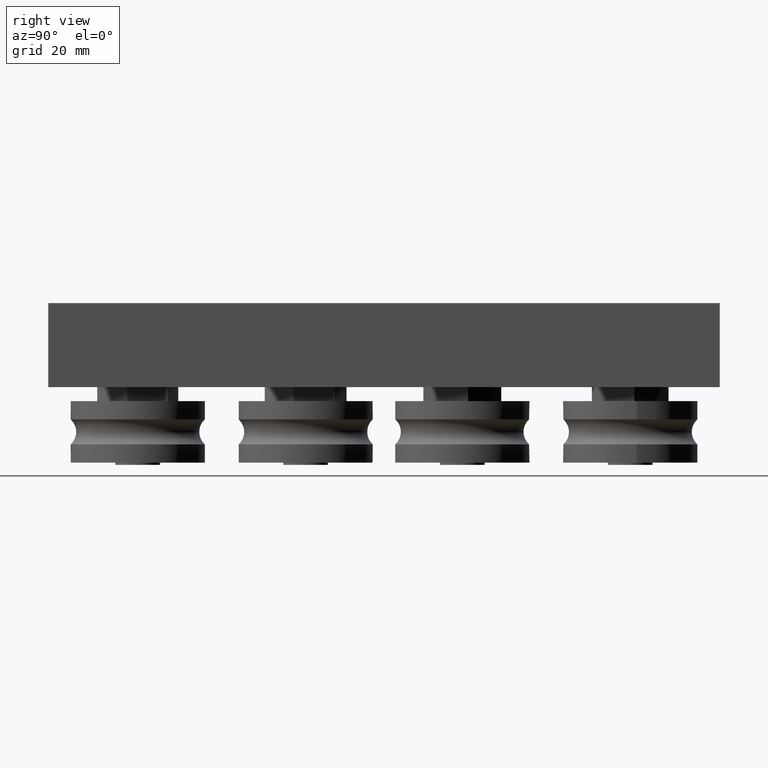
[diagram: clean part render]
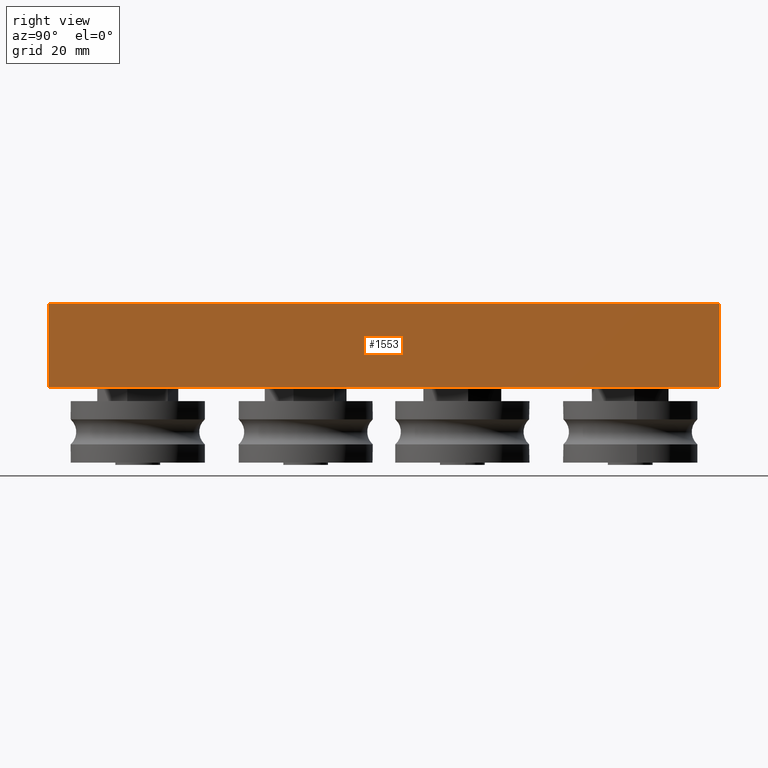
[diagram: same view with one face highlighted and labeled with its STEP entity id]
A machine part, right view. The second image highlights one B-rep face of the part: STEP entity #1553.
In plain terms, the highlighted planar face has unit normal (1, -0, 0).
Its self-contained STEP definition (entity closure, byte-faithful):
#143=LINE('',#2690,#245);
#148=LINE('',#2700,#250);
#149=LINE('',#2703,#251);
#150=LINE('',#2704,#252);
#245=VECTOR('',#2173,10.);
#250=VECTOR('',#2182,10.);
#251=VECTOR('',#2185,10.);
#252=VECTOR('',#2186,10.);
#435=FACE_OUTER_BOUND('',#548,.T.);
#548=EDGE_LOOP('',(#1167,#1168,#1169,#1170));
#776=VERTEX_POINT('',#2683);
#779=VERTEX_POINT('',#2688);
#782=VERTEX_POINT('',#2698);
#783=VERTEX_POINT('',#2702);
#927=EDGE_CURVE('',#779,#776,#143,.T.);
#932=EDGE_CURVE('',#779,#782,#148,.T.);
#933=EDGE_CURVE('',#783,#782,#149,.T.);
#934=EDGE_CURVE('',#776,#783,#150,.T.);
#1167=ORIENTED_EDGE('',*,*,#932,.T.);
#1168=ORIENTED_EDGE('',*,*,#933,.F.);
#1169=ORIENTED_EDGE('',*,*,#934,.F.);
#1170=ORIENTED_EDGE('',*,*,#927,.F.);
#1486=PLANE('',#1893);
#1553=ADVANCED_FACE('',(#435),#1486,.T.);
#1893=AXIS2_PLACEMENT_3D('',#2701,#2183,#2184);
#2173=DIRECTION('',(7.40148683083438E-17,0.,-1.));
#2182=DIRECTION('',(0.,1.,0.));
#2183=DIRECTION('center_axis',(-1.,0.,-7.40148683083438E-17));
#2184=DIRECTION('ref_axis',(-7.40148683083438E-17,0.,1.));
#2185=DIRECTION('',(-7.40148683083438E-17,0.,1.));
#2186=DIRECTION('',(0.,1.,0.));
#2683=CARTESIAN_POINT('',(-21.5,-7.5,-60.));
#2688=CARTESIAN_POINT('',(-21.5,-7.5,60.));
#2690=CARTESIAN_POINT('',(-21.5,-7.5,-60.));
#2698=CARTESIAN_POINT('',(-21.5,7.5,60.));
#2700=CARTESIAN_POINT('',(-21.5,0.,60.));
#2701=CARTESIAN_POINT('Origin',(-21.5,0.,-60.));
#2702=CARTESIAN_POINT('',(-21.5,7.5,-60.));
#2703=CARTESIAN_POINT('',(-21.5,7.5,-60.));
#2704=CARTESIAN_POINT('',(-21.5,0.,-60.));